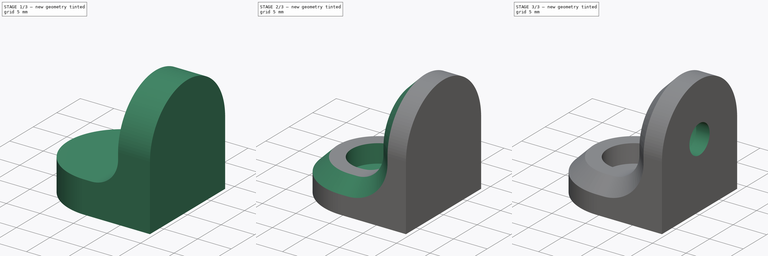
[diagram: build sequence overview — one tinted view per stage of 3, left to right]
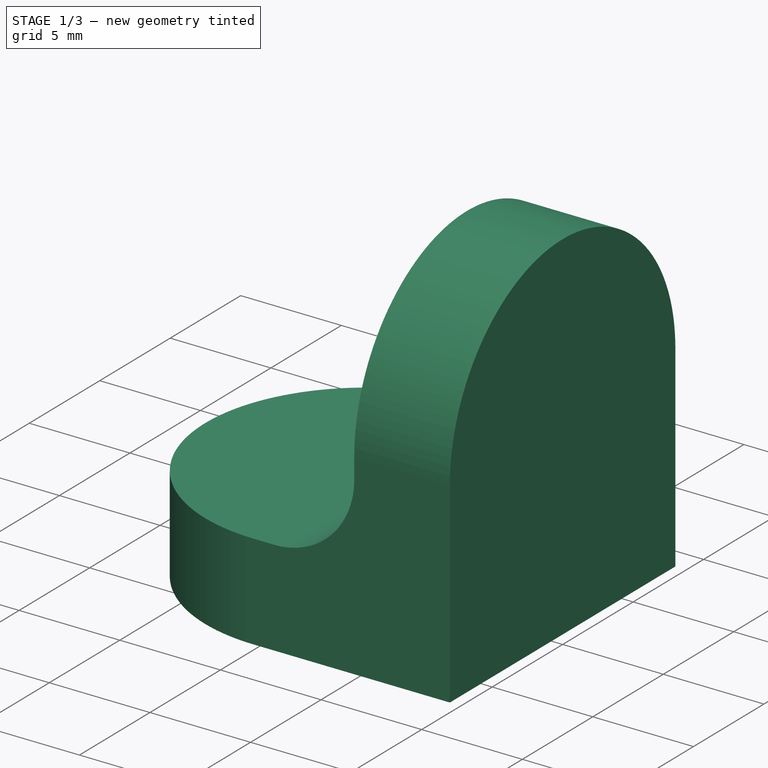
[diagram: stage 1 of 3 — iso view after this stage's code; geometry added in this stage tinted green]
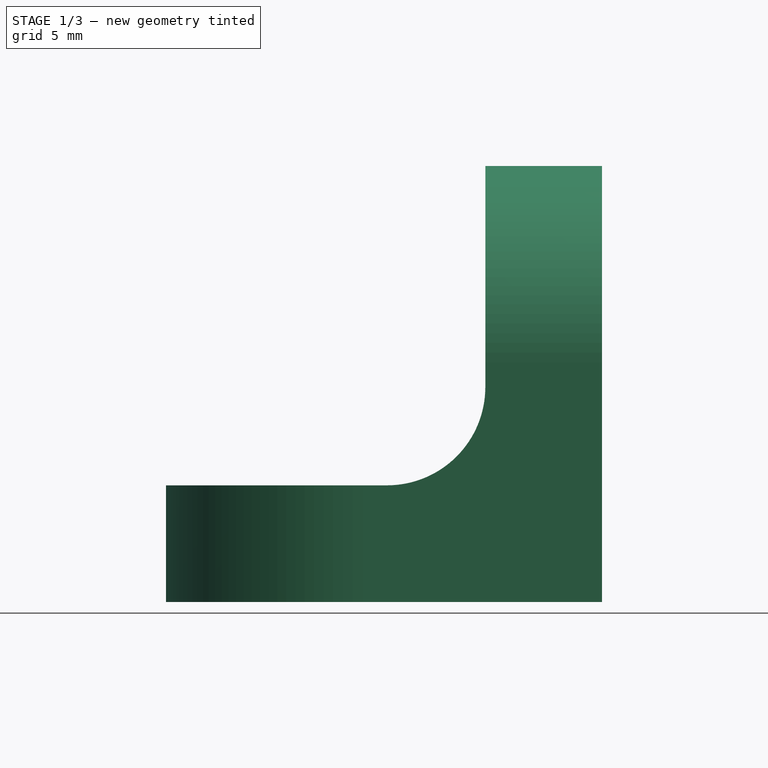
[diagram: stage 1 of 3 — front view after this stage's code; geometry added in this stage tinted green]
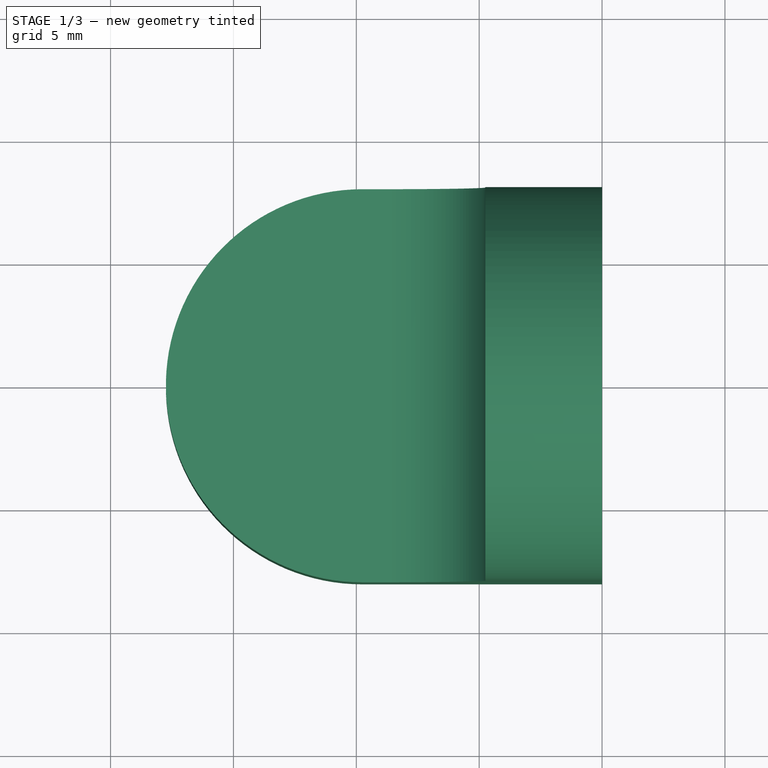
[diagram: stage 1 of 3 — top view after this stage's code; geometry added in this stage tinted green]
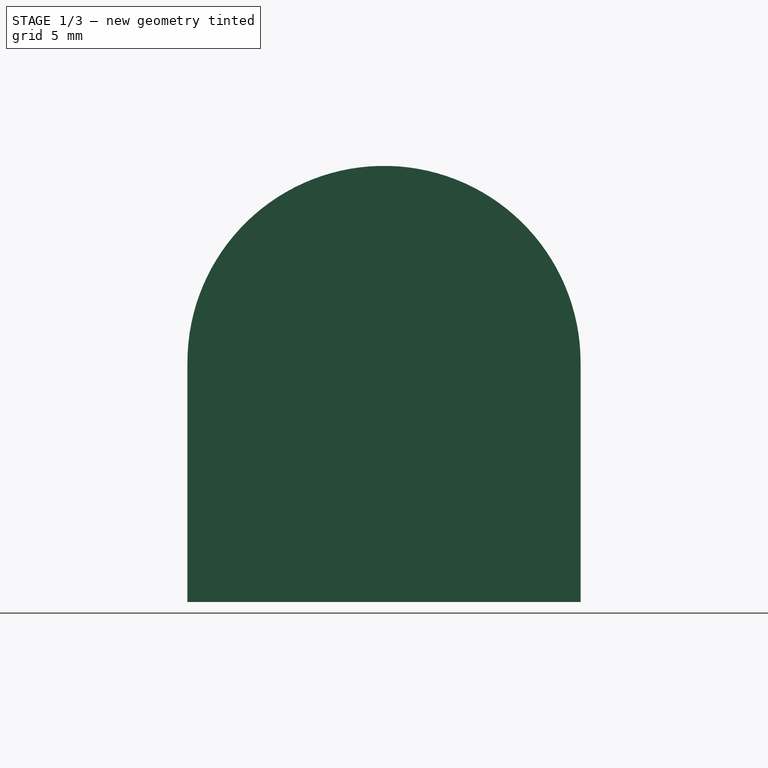
[diagram: stage 1 of 3 — right view after this stage's code; geometry added in this stage tinted green]
FCSTD DOCUMENT  (FreeCAD 0.16R6712 (Git))
Label: ShelfAngle
License: All rights reserved
LicenseURL: http://en.wikipedia.org/wiki/All_rights_reserved
objects: Sketcher::SketchObject×6, PartDesign::Pocket×4, PartDesign::Pad×2, PartDesign::Fillet×1, PartDesign::Chamfer×1
note: 20 computed .brp shape members not serialized (recipe doc carries the construction recipe); baked Part::Feature solids carry a one-line shape summary decoded from their .brp

FEATURE [Sketcher::SketchObject] Sketch
  sketch-geometry (4):
    g0: LineSegment StartX=-9.75 StartY=8 StartZ=0 EndX=0 EndY=8 EndZ=0
    g1: LineSegment StartX=0 StartY=8 StartZ=0 EndX=0 EndY=-8 EndZ=0
    g2: LineSegment StartX=0 StartY=-8 StartZ=0 EndX=-9.74997 EndY=-8 EndZ=0
    g3: ArcOfCircle CenterX=-9.74997 CenterY=0 CenterZ=0 NormalX=0 NormalY=0 NormalZ=1 Radius=8 StartAngle=1.5708 EndAngle=4.71239
  constraints (13):
    c: PointOnObject(g0,g-2)
    c: Horizontal(g0)
    c: Coincident(g0,g1)
    c: PointOnObject(g1,g-2)
    c: Coincident(g1,g2)
    c: Horizontal(g2)
    c: PointOnObject(g3,g-1)
    c: Coincident(g3,g0)
    c: Coincident(g3,g2)
    c: Tangent(g3,g0)
    c: Tangent(g3,g2)
    c: Radius(g3) = 8
    c: DistanceX(g0,g0) = 9.75
FEATURE [PartDesign::Pad] Pad
  Length = 4.75
  Length2 = 100
  Sketch = -> Sketch
  Type = 0
FEATURE [Sketcher::SketchObject] Sketch001
  ExternalGeometry = -> [Pad]
  Placement = pos=(0,0,0) rot=(0.57735,0.57735,0.57735;2.0944rad)
  Support = -> Pad [Face2]
  sketch-geometry (4):
    g0: LineSegment StartX=-8 StartY=9.75 StartZ=0 EndX=-8 EndY=0 EndZ=0
    g1: LineSegment StartX=-8 StartY=0 StartZ=0 EndX=8 EndY=0 EndZ=0
    g2: LineSegment StartX=8 StartY=0 StartZ=0 EndX=8 EndY=9.74997 EndZ=0
    g3: ArcOfCircle CenterX=0 CenterY=9.74997 CenterZ=0 NormalX=0 NormalY=0 NormalZ=1 Radius=8 StartAngle=6.28319 EndAngle=9.42477
  constraints (11):
    c: Coincident(g0,g1)
    c: Coincident(g1,g2)
    c: PointOnObject(g3,g-2)
    c: Coincident(g3,g0)
    c: Coincident(g3,g2)
    c: Coincident(g-3,g0)
    c: Coincident(g1,g-4)
    c: Tangent(g3,g0)
    c: Vertical(g0)
    c: Vertical(g2)
    c: DistanceY(g0,g0) = 9.75
FEATURE [PartDesign::Pad] Pad001
  Length = 4.75
  Length2 = 100
  Reversed = true
  Sketch = -> Sketch001
  Type = 0
FEATURE [PartDesign::Fillet] Fillet
  Base = -> Pad001 [Edge12]
  Radius = 4
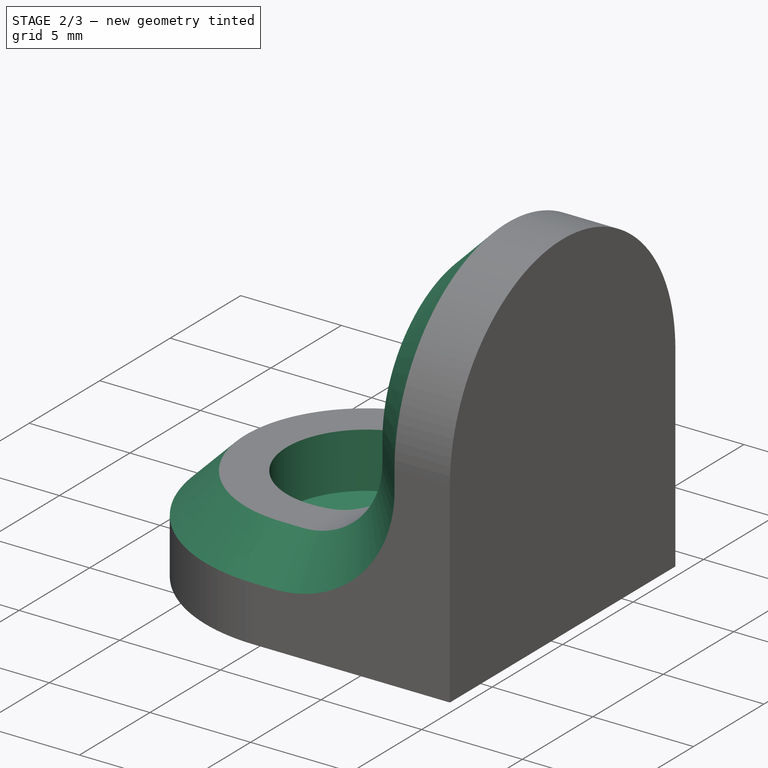
[diagram: stage 2 of 3 — iso view after this stage's code; geometry added in this stage tinted green]
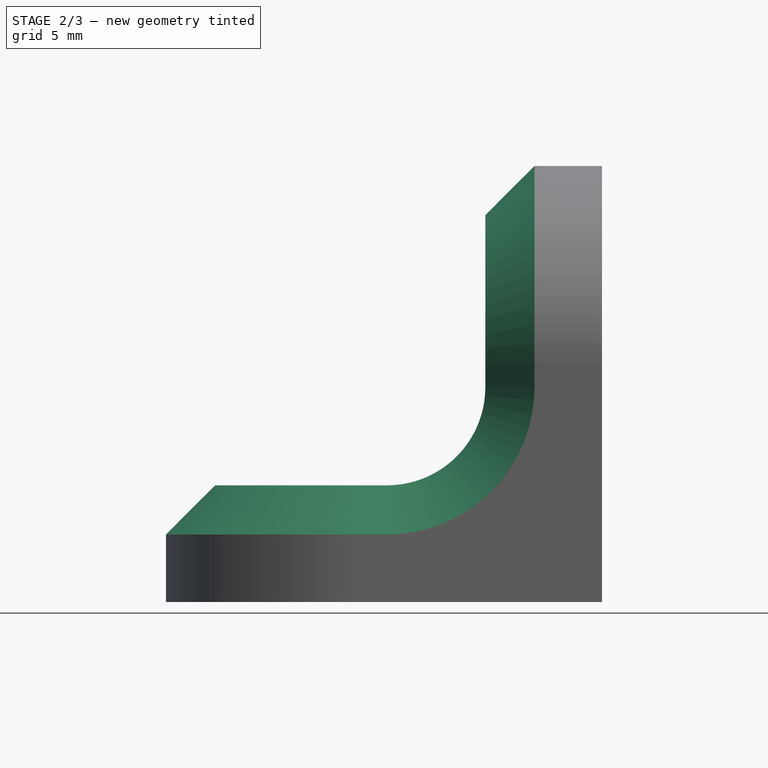
[diagram: stage 2 of 3 — front view after this stage's code; geometry added in this stage tinted green]
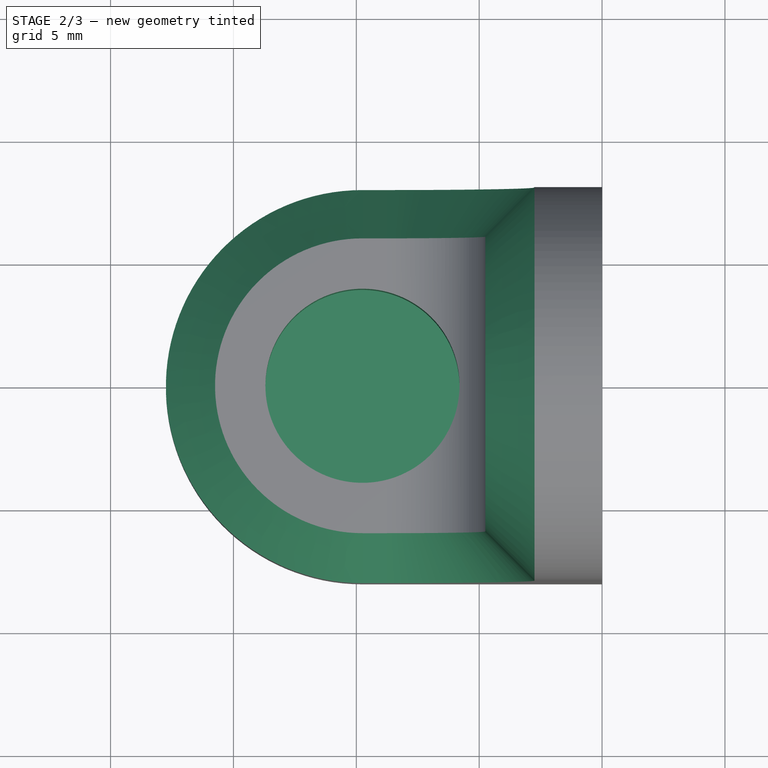
[diagram: stage 2 of 3 — top view after this stage's code; geometry added in this stage tinted green]
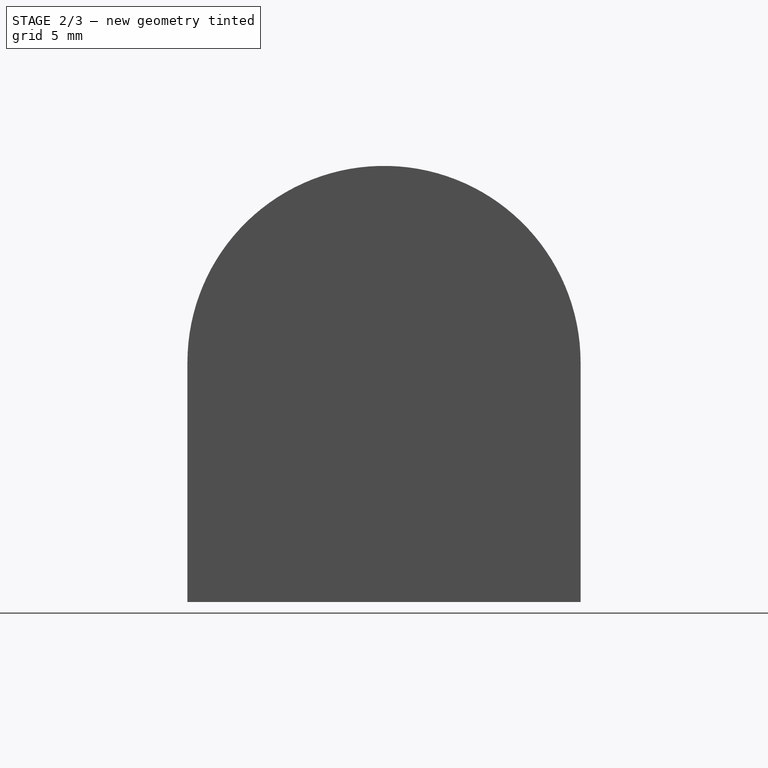
[diagram: stage 2 of 3 — right view after this stage's code; geometry added in this stage tinted green]
FEATURE [PartDesign::Chamfer] Chamfer
  Base = -> Fillet [Edge7]
  Size = 2
FEATURE [Sketcher::SketchObject] Sketch002
  ExternalGeometry = -> [Chamfer]
  Placement = pos=(0,0,4.75) rot=(0,0,1;0rad)
  Support = -> Chamfer [Face9]
  sketch-geometry (1):
    g0: Circle CenterX=-9.74997 CenterY=0 CenterZ=0 NormalX=0 NormalY=0 NormalZ=1 Radius=3.95
  constraints (2):
    c: Coincident(g0,g-3)
    c: Radius(g0) = 3.95
FEATURE [PartDesign::Pocket] Pocket
  Length = 5.5
  Midplane = true
  Sketch = -> Sketch002
  Type = 0
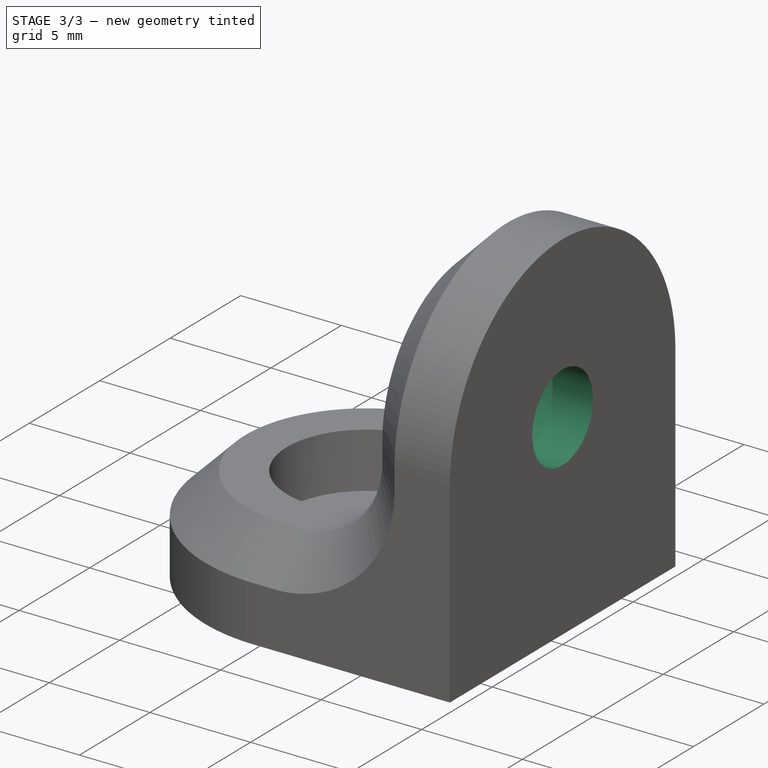
[diagram: stage 3 of 3 — iso view after this stage's code; geometry added in this stage tinted green]
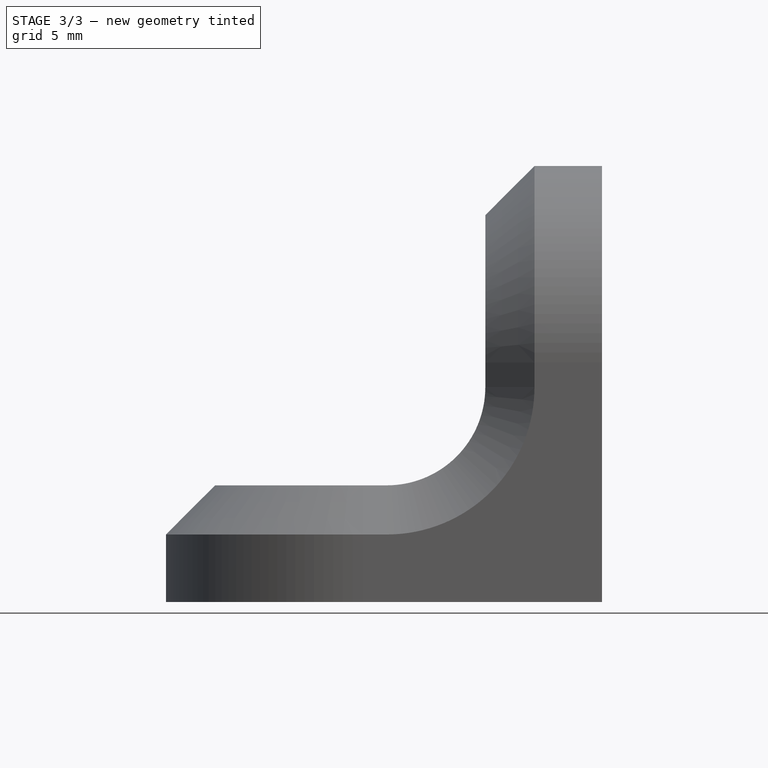
[diagram: stage 3 of 3 — front view after this stage's code; geometry added in this stage tinted green]
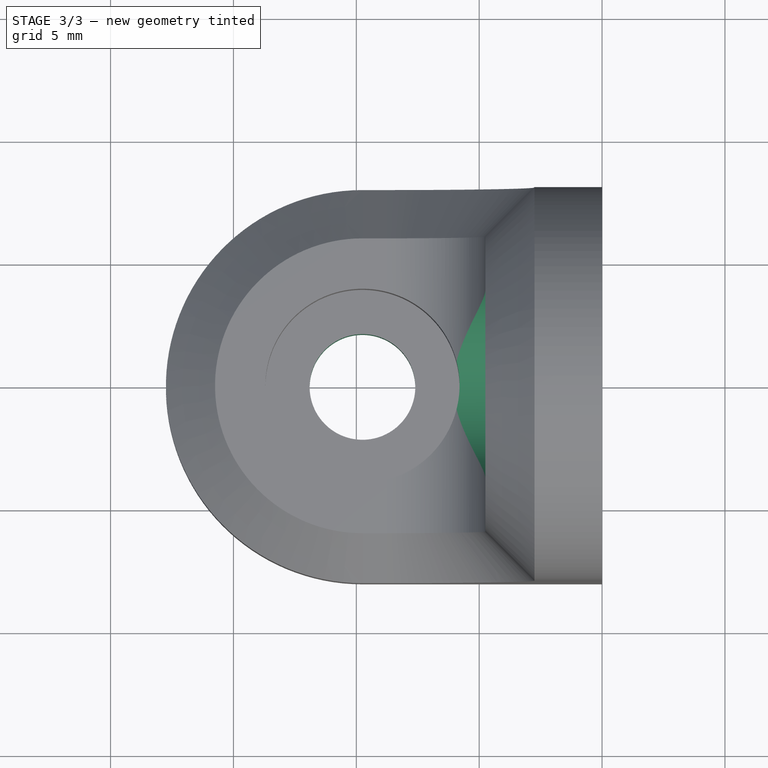
[diagram: stage 3 of 3 — top view after this stage's code; geometry added in this stage tinted green]
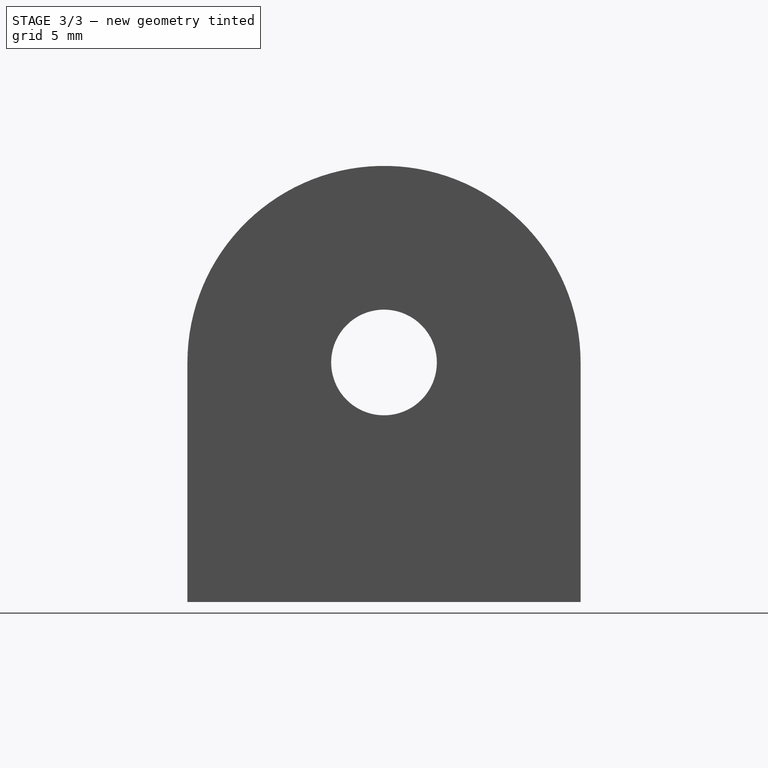
[diagram: stage 3 of 3 — right view after this stage's code; geometry added in this stage tinted green]
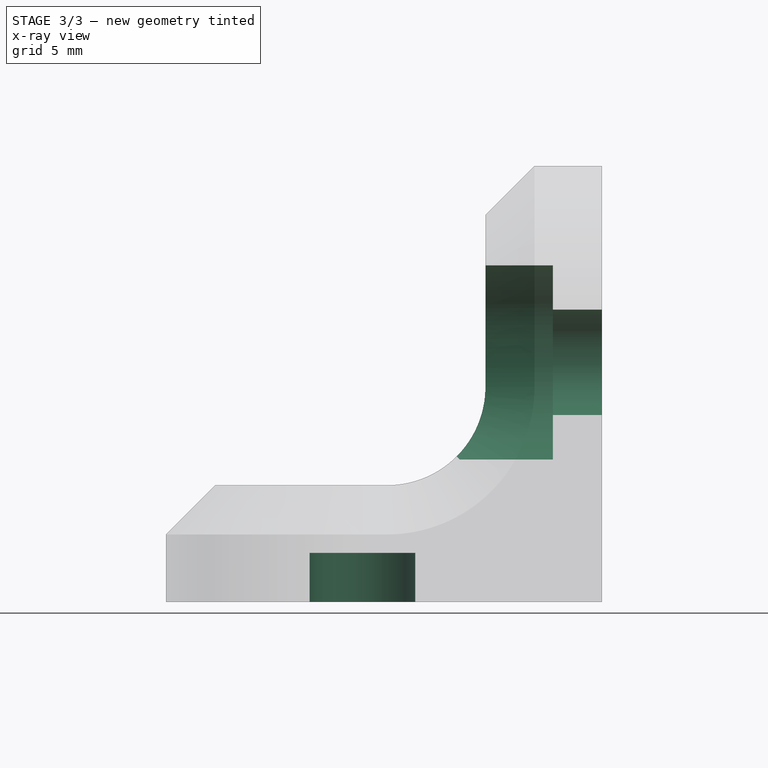
[diagram: stage 3 of 3 — x-ray composite at the front view; earlier geometry ghosted, this stage's added geometry solid]
FEATURE [Sketcher::SketchObject] Sketch003
  ExternalGeometry = -> [Pocket]
  Placement = pos=(-4.75,0,0) rot=(0.57735,-0.57735,-0.57735;2.0944rad)
  Support = -> Pocket [Face22]
  sketch-geometry (1):
    g0: Circle CenterX=0 CenterY=9.74997 CenterZ=0 NormalX=0 NormalY=0 NormalZ=1 Radius=3.95
  constraints (2):
    c: Coincident(g0,g-3)
    c: Radius(g0) = 3.95
FEATURE [PartDesign::Pocket] Pocket001
  Length = 5.5
  Midplane = true
  Sketch = -> Sketch003
  Type = 0
FEATURE [Sketcher::SketchObject] Sketch004
  ExternalGeometry = -> [Pocket001]
  Placement = pos=(-2,0,0) rot=(0.57735,-0.57735,-0.57735;2.0944rad)
  Support = -> Pocket001 [Face30]
  sketch-geometry (1):
    g0: Circle CenterX=0 CenterY=9.74997 CenterZ=0 NormalX=0 NormalY=0 NormalZ=1 Radius=2.15
  constraints (2):
    c: Coincident(g0,g-3)
    c: Radius(g0) = 2.15
FEATURE [PartDesign::Pocket] Pocket002
  Length = 5
  Sketch = -> Sketch004
  Type = 1
FEATURE [Sketcher::SketchObject] Sketch005
  ExternalGeometry = -> [Pocket002]
  Placement = pos=(0,0,2) rot=(0,0,1;0rad)
  Support = -> Pocket002 [Face28]
  sketch-geometry (1):
    g0: Circle CenterX=-9.74997 CenterY=0 CenterZ=0 NormalX=0 NormalY=0 NormalZ=1 Radius=2.15
  constraints (2):
    c: Coincident(g0,g-3)
    c: Radius(g0) = 2.15
FEATURE [PartDesign::Pocket] Pocket003
  Length = 5
  Sketch = -> Sketch005
  Type = 1
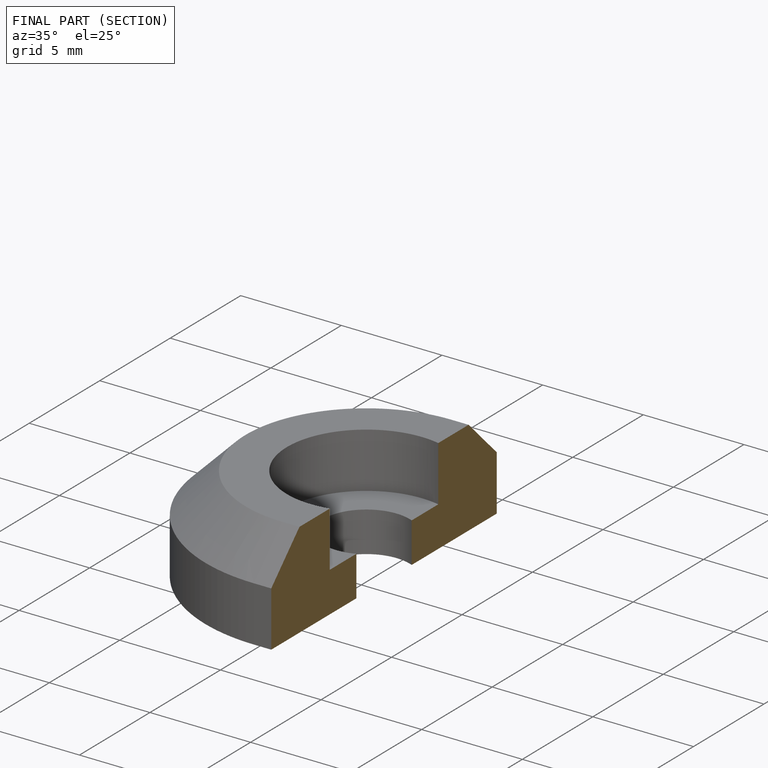
[diagram: finished part — half-section view (interior)]
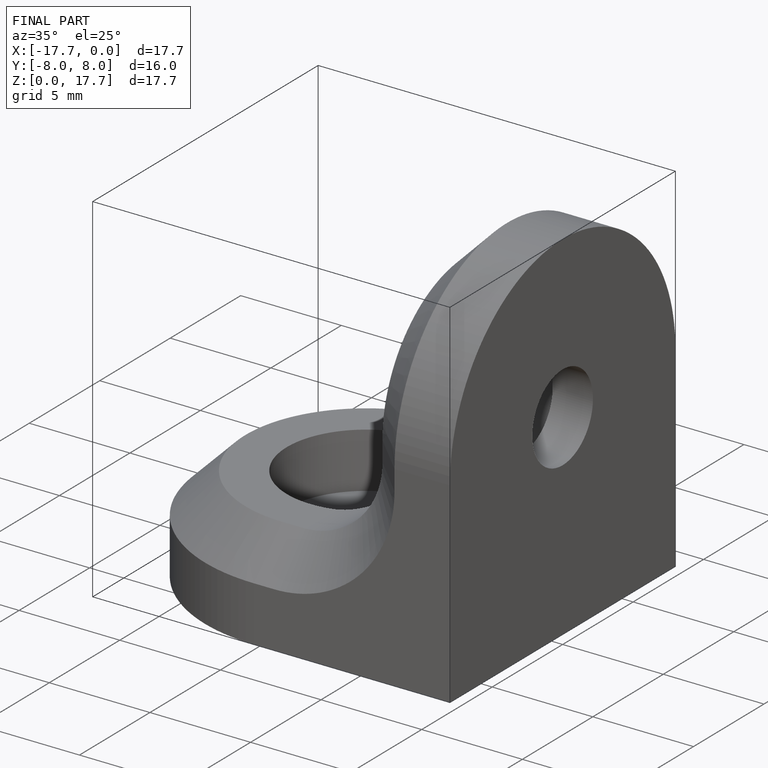
[diagram: finished part — iso view with bounding-box wireframe]
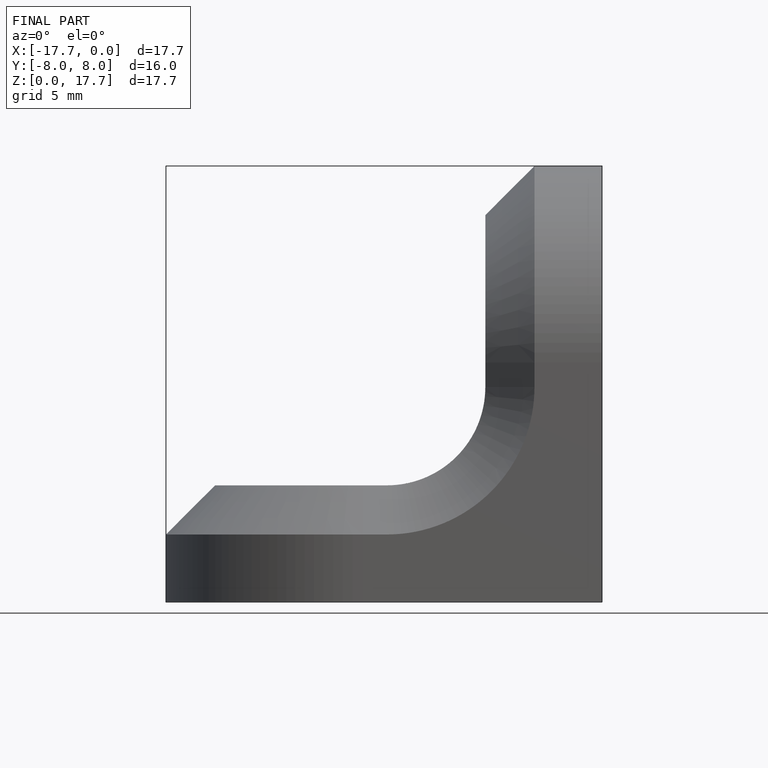
[diagram: finished part — front view with bounding-box wireframe]
